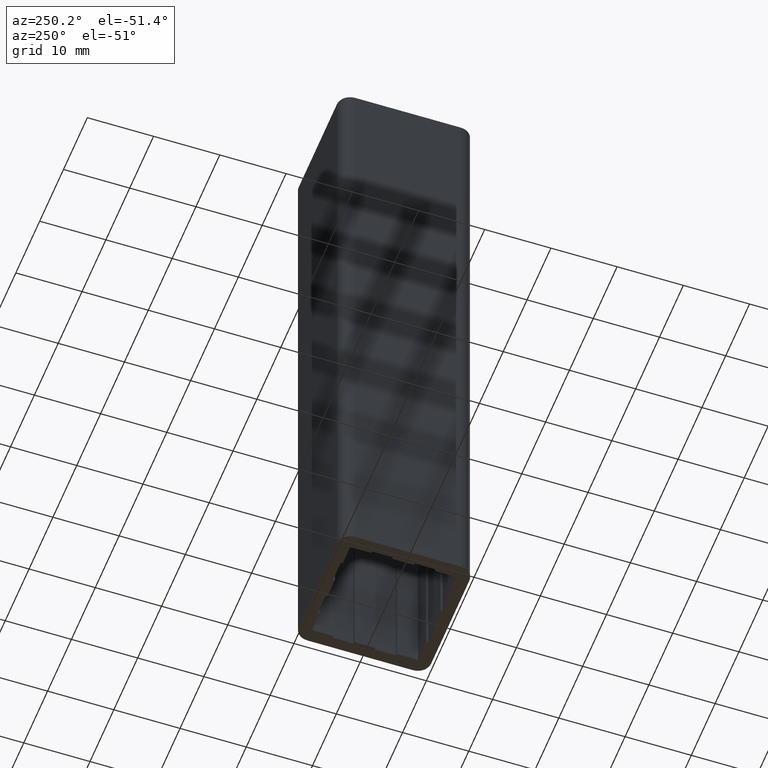
[diagram: clean part render]
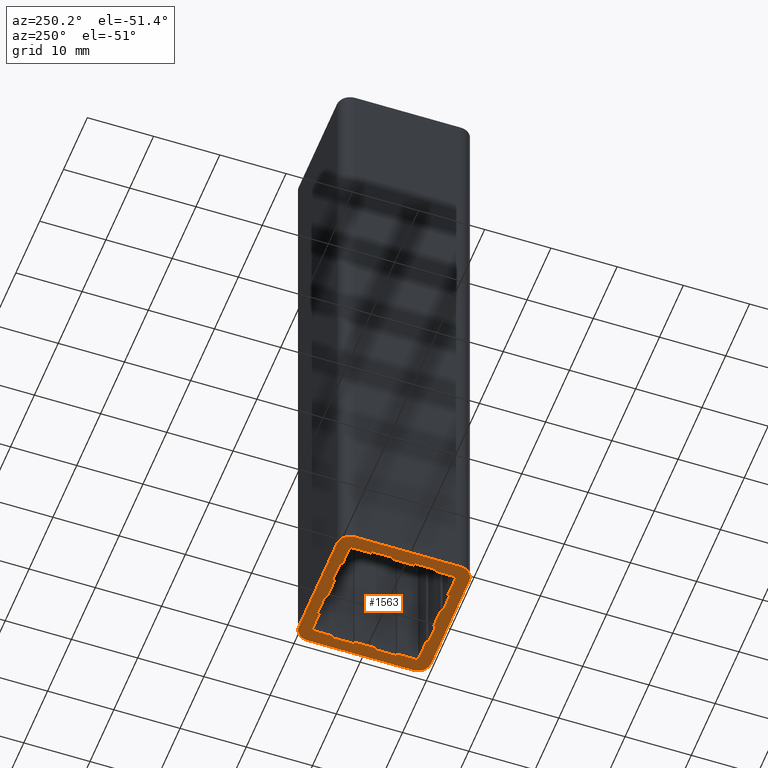
[diagram: same view with one face highlighted and labeled with its STEP entity id]
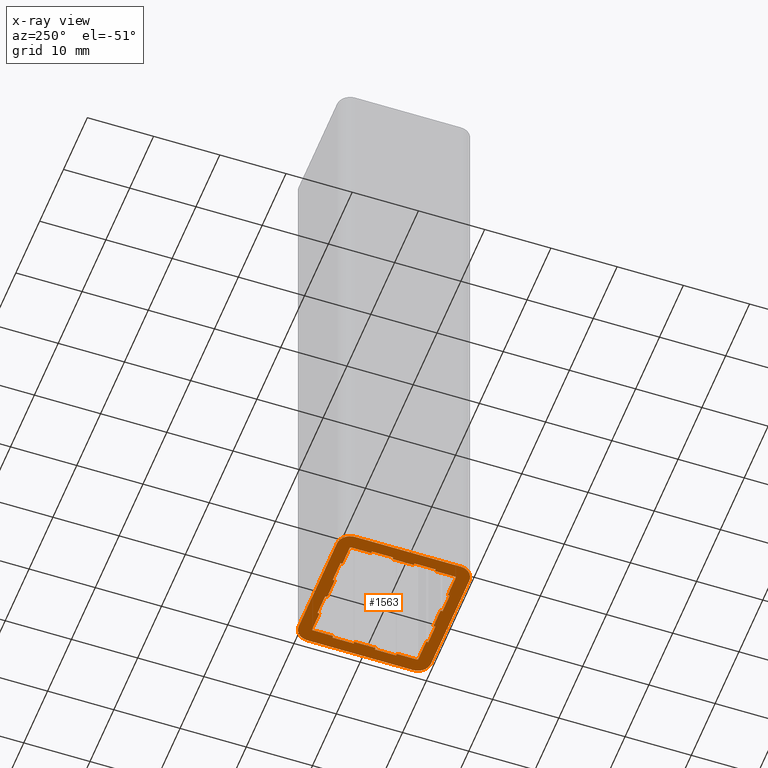
[diagram: x-ray of the same camera — body ghosted, the highlighted face saturated]
A machine part, auxiliary view. The second image highlights one B-rep face of the part: STEP entity #1563.
The next image is the same camera in x-ray: the body ghosted, the highlighted face saturated — about 0% of this face is hidden behind the body in this view.
In plain terms, the highlighted planar face has unit normal (0, 0, 1).
Its self-contained STEP definition (entity closure, byte-faithful):
#7=CARTESIAN_POINT('',(-20.0,-8.0,0.0));
#8=VERTEX_POINT('',#7);
#9=CARTESIAN_POINT('',(-18.0,-10.0,0.0));
#10=VERTEX_POINT('',#9);
#11=CARTESIAN_POINT('',(-18.0,-8.0,0.0));
#12=DIRECTION('',(0.0,0.0,1.0));
#13=DIRECTION('',(1.0,0.0,0.0));
#14=AXIS2_PLACEMENT_3D('',#11,#12,#13);
#15=CIRCLE('',#14,2.0);
#16=EDGE_CURVE('',#8,#10,#15,.T.);
#49=CARTESIAN_POINT('',(-2.0,-10.0,0.0));
#50=VERTEX_POINT('',#49);
#51=CARTESIAN_POINT('',(-18.0,-10.0,0.0));
#52=DIRECTION('',(1.0,0.0,0.0));
#53=VECTOR('',#52,16.000000000000011);
#54=LINE('',#51,#53);
#55=EDGE_CURVE('',#10,#50,#54,.T.);
#80=CARTESIAN_POINT('',(0.0,-8.0,0.0));
#81=VERTEX_POINT('',#80);
#82=CARTESIAN_POINT('',(-2.0,-8.0,0.0));
#83=DIRECTION('',(0.0,0.0,1.0));
#84=DIRECTION('',(1.0,0.0,0.0));
#85=AXIS2_PLACEMENT_3D('',#82,#83,#84);
#86=CIRCLE('',#85,2.0);
#87=EDGE_CURVE('',#50,#81,#86,.T.);
#113=CARTESIAN_POINT('',(0.0,8.0,0.0));
#114=VERTEX_POINT('',#113);
#115=CARTESIAN_POINT('',(0.0,-8.0,0.0));
#116=DIRECTION('',(0.0,1.0,0.0));
#117=VECTOR('',#116,16.0);
#118=LINE('',#115,#117);
#119=EDGE_CURVE('',#81,#114,#118,.T.);
#144=CARTESIAN_POINT('',(-2.0,10.0,0.0));
#145=VERTEX_POINT('',#144);
#146=CARTESIAN_POINT('',(-2.0,8.0,0.0));
#147=DIRECTION('',(0.0,0.0,1.0));
#148=DIRECTION('',(1.0,0.0,0.0));
#149=AXIS2_PLACEMENT_3D('',#146,#147,#148);
#150=CIRCLE('',#149,2.0);
#151=EDGE_CURVE('',#114,#145,#150,.T.);
#177=CARTESIAN_POINT('',(-18.0,10.0,0.0));
#178=VERTEX_POINT('',#177);
#179=CARTESIAN_POINT('',(-1.999999999999989,10.0,0.0));
#180=DIRECTION('',(-1.0,0.0,0.0));
#181=VECTOR('',#180,16.000000000000011);
#182=LINE('',#179,#181);
#183=EDGE_CURVE('',#145,#178,#182,.T.);
#208=CARTESIAN_POINT('',(-20.0,8.0,0.0));
#209=VERTEX_POINT('',#208);
#210=CARTESIAN_POINT('',(-18.0,8.0,0.0));
#211=DIRECTION('',(0.0,0.0,1.0));
#212=DIRECTION('',(1.0,0.0,0.0));
#213=AXIS2_PLACEMENT_3D('',#210,#211,#212);
#214=CIRCLE('',#213,2.0);
#215=EDGE_CURVE('',#178,#209,#214,.T.);
#241=CARTESIAN_POINT('',(-20.0,8.0,0.0));
#242=DIRECTION('',(0.0,-1.0,0.0));
#243=VECTOR('',#242,16.0);
#244=LINE('',#241,#243);
#245=EDGE_CURVE('',#209,#8,#244,.T.);
#263=CARTESIAN_POINT('',(-2.160000000000196,-8.0,0.0));
#264=VERTEX_POINT('',#263);
#265=CARTESIAN_POINT('',(-5.500000000000000,-8.0,0.0));
#266=VERTEX_POINT('',#265);
#267=CARTESIAN_POINT('',(-2.160000000000218,-8.0,0.0));
#268=DIRECTION('',(-1.0,0.0,0.0));
#269=VECTOR('',#268,3.339999999999782);
#270=LINE('',#267,#269);
#271=EDGE_CURVE('',#264,#266,#270,.T.);
#303=CARTESIAN_POINT('',(-5.500000000000000,-8.299999999999955,0.0));
#304=VERTEX_POINT('',#303);
#305=CARTESIAN_POINT('',(-5.500000000000000,-7.999999999999955,0.0));
#306=DIRECTION('',(0.0,-1.0,0.0));
#307=VECTOR('',#306,0.300000000000000);
#308=LINE('',#305,#307);
#309=EDGE_CURVE('',#266,#304,#308,.T.);
#334=CARTESIAN_POINT('',(-8.500000000000000,-8.299999999999955,0.0));
#335=VERTEX_POINT('',#334);
#336=CARTESIAN_POINT('',(-5.500000000000000,-8.299999999999955,0.0));
#337=DIRECTION('',(-1.0,0.0,0.0));
#338=VECTOR('',#337,3.0);
#339=LINE('',#336,#338);
#340=EDGE_CURVE('',#304,#335,#339,.T.);
#365=CARTESIAN_POINT('',(-8.500000000000000,-8.0,0.0));
#366=VERTEX_POINT('',#365);
#367=CARTESIAN_POINT('',(-8.500000000000000,-8.300000000000001,0.0));
#368=DIRECTION('',(0.0,1.0,0.0));
#369=VECTOR('',#368,0.300000000000001);
#370=LINE('',#367,#369);
#371=EDGE_CURVE('',#335,#366,#370,.T.);
#396=CARTESIAN_POINT('',(-11.500000000000000,-8.0,0.0));
#397=VERTEX_POINT('',#396);
#398=CARTESIAN_POINT('',(-8.500000000000011,-8.0,0.0));
#399=DIRECTION('',(-1.0,0.0,0.0));
#400=VECTOR('',#399,2.999999999999989);
#401=LINE('',#398,#400);
#402=EDGE_CURVE('',#366,#397,#401,.T.);
#427=CARTESIAN_POINT('',(-11.500000000000000,-8.299999999999955,0.0));
#428=VERTEX_POINT('',#427);
#429=CARTESIAN_POINT('',(-11.500000000000000,-7.999999999999955,0.0));
#430=DIRECTION('',(0.0,-1.0,0.0));
#431=VECTOR('',#430,0.300000000000000);
#432=LINE('',#429,#431);
#433=EDGE_CURVE('',#397,#428,#432,.T.);
#458=CARTESIAN_POINT('',(-14.500000000000000,-8.299999999999955,0.0));
#459=VERTEX_POINT('',#458);
#460=CARTESIAN_POINT('',(-11.500000000000000,-8.299999999999955,0.0));
#461=DIRECTION('',(-1.0,0.0,0.0));
#462=VECTOR('',#461,3.0);
#463=LINE('',#460,#462);
#464=EDGE_CURVE('',#428,#459,#463,.T.);
#489=CARTESIAN_POINT('',(-14.500000000000000,-8.0,0.0));
#490=VERTEX_POINT('',#489);
#491=CARTESIAN_POINT('',(-14.500000000000000,-8.300000000000001,0.0));
#492=DIRECTION('',(0.0,1.0,0.0));
#493=VECTOR('',#492,0.300000000000001);
#494=LINE('',#491,#493);
#495=EDGE_CURVE('',#459,#490,#494,.T.);
#520=CARTESIAN_POINT('',(-17.840000000000146,-8.000000000000227,0.0));
#521=VERTEX_POINT('',#520);
#522=CARTESIAN_POINT('',(-14.500000000000000,-8.0,0.0));
#523=DIRECTION('',(-1.0,0.0,0.0));
#524=VECTOR('',#523,3.340000000000146);
#525=LINE('',#522,#524);
#526=EDGE_CURVE('',#490,#521,#525,.T.);
#551=CARTESIAN_POINT('',(-18.000000000000341,-7.840000000000146,0.0));
#552=VERTEX_POINT('',#551);
#553=CARTESIAN_POINT('',(-17.840000000000146,-7.840000000000146,0.0));
#554=DIRECTION('',(0.0,0.0,-1.0));
#555=DIRECTION('',(1.0,0.0,0.0));
#556=AXIS2_PLACEMENT_3D('',#553,#554,#555);
#557=CIRCLE('',#556,0.160000000000000);
#558=EDGE_CURVE('',#521,#552,#557,.T.);
#584=CARTESIAN_POINT('',(-18.000000000000341,-4.799999999999955,0.0));
#585=VERTEX_POINT('',#584);
#586=CARTESIAN_POINT('',(-18.000000000000341,-7.840000000000055,0.0));
#587=DIRECTION('',(0.0,1.0,0.0));
#588=VECTOR('',#587,3.040000000000100);
#589=LINE('',#586,#588);
#590=EDGE_CURVE('',#552,#585,#589,.T.);
#615=CARTESIAN_POINT('',(-18.300000000000409,-4.799999999999955,0.0));
#616=VERTEX_POINT('',#615);
#617=CARTESIAN_POINT('',(-18.000000000000398,-4.799999999999955,0.0));
#618=DIRECTION('',(-1.0,0.0,0.0));
#619=VECTOR('',#618,0.300000000000011);
#620=LINE('',#617,#619);
#621=EDGE_CURVE('',#585,#616,#620,.T.);
#646=CARTESIAN_POINT('',(-18.300000000000296,-1.599999999999909,0.0));
#647=VERTEX_POINT('',#646);
#648=CARTESIAN_POINT('',(-18.300000000000409,-4.799999999999909,0.0));
#649=DIRECTION('',(0.0,1.0,0.0));
#650=VECTOR('',#649,3.200000000000000);
#651=LINE('',#648,#650);
#652=EDGE_CURVE('',#616,#647,#651,.T.);
#677=CARTESIAN_POINT('',(-18.000000000000341,-1.599999999999909,0.0));
#678=VERTEX_POINT('',#677);
#679=CARTESIAN_POINT('',(-18.300000000000352,-1.599999999999909,0.0));
#680=DIRECTION('',(1.0,0.0,0.0));
#681=VECTOR('',#680,0.300000000000011);
#682=LINE('',#679,#681);
#683=EDGE_CURVE('',#647,#678,#682,.T.);
#708=CARTESIAN_POINT('',(-18.000000000000341,1.599999999999909,0.0));
#709=VERTEX_POINT('',#708);
#710=CARTESIAN_POINT('',(-18.000000000000341,-1.600000000000000,0.0));
#711=DIRECTION('',(0.0,1.0,0.0));
#712=VECTOR('',#711,3.199999999999909);
#713=LINE('',#710,#712);
#714=EDGE_CURVE('',#678,#709,#713,.T.);
#739=CARTESIAN_POINT('',(-18.300000000000409,1.599999999999909,0.0));
#740=VERTEX_POINT('',#739);
#741=CARTESIAN_POINT('',(-18.000000000000398,1.599999999999909,0.0));
#742=DIRECTION('',(-1.0,0.0,0.0));
#743=VECTOR('',#742,0.300000000000011);
#744=LINE('',#741,#743);
#745=EDGE_CURVE('',#709,#740,#744,.T.);
#770=CARTESIAN_POINT('',(-18.300000000000296,4.799999999999955,0.0));
#771=VERTEX_POINT('',#770);
#772=CARTESIAN_POINT('',(-18.300000000000409,1.599999999999954,0.0));
#773=DIRECTION('',(0.0,1.0,0.0));
#774=VECTOR('',#773,3.200000000000000);
#775=LINE('',#772,#774);
#776=EDGE_CURVE('',#740,#771,#775,.T.);
#801=CARTESIAN_POINT('',(-18.000000000000341,4.799999999999955,0.0));
#802=VERTEX_POINT('',#801);
#803=CARTESIAN_POINT('',(-18.300000000000352,4.799999999999955,0.0));
#804=DIRECTION('',(1.0,0.0,0.0));
#805=VECTOR('',#804,0.300000000000011);
#806=LINE('',#803,#805);
#807=EDGE_CURVE('',#771,#802,#806,.T.);
#832=CARTESIAN_POINT('',(-18.000000000000455,7.840000000000146,0.0));
#833=VERTEX_POINT('',#832);
#834=CARTESIAN_POINT('',(-18.000000000000341,4.800000000000045,0.0));
#835=DIRECTION('',(0.0,1.0,0.0));
#836=VECTOR('',#835,3.040000000000100);
#837=LINE('',#834,#836);
#838=EDGE_CURVE('',#802,#833,#837,.T.);
#863=CARTESIAN_POINT('',(-17.840000000000600,8.0,0.0));
#864=VERTEX_POINT('',#863);
#865=CARTESIAN_POINT('',(-17.840000000000487,7.840000000000146,0.0));
#866=DIRECTION('',(0.0,0.0,-1.0));
#867=DIRECTION('',(1.0,0.0,0.0));
#868=AXIS2_PLACEMENT_3D('',#865,#866,#867);
#869=CIRCLE('',#868,0.160000000000000);
#870=EDGE_CURVE('',#833,#864,#869,.T.);
#896=CARTESIAN_POINT('',(-14.800000000000068,8.0,0.0));
#897=VERTEX_POINT('',#896);
#898=CARTESIAN_POINT('',(-17.840000000000565,8.0,0.0));
#899=DIRECTION('',(1.0,0.0,0.0));
#900=VECTOR('',#899,3.040000000000497);
#901=LINE('',#898,#900);
#902=EDGE_CURVE('',#864,#897,#901,.T.);
#927=CARTESIAN_POINT('',(-14.800000000000068,8.299999999999955,0.0));
#928=VERTEX_POINT('',#927);
#929=CARTESIAN_POINT('',(-14.800000000000068,7.999999999999955,0.0));
#930=DIRECTION('',(0.0,1.0,0.0));
#931=VECTOR('',#930,0.300000000000000);
#932=LINE('',#929,#931);
#933=EDGE_CURVE('',#897,#928,#932,.T.);
#958=CARTESIAN_POINT('',(-11.600000000000250,8.299999999999955,0.0));
#959=VERTEX_POINT('',#958);
#960=CARTESIAN_POINT('',(-14.800000000000068,8.299999999999955,0.0));
#961=DIRECTION('',(1.0,0.0,0.0));
#962=VECTOR('',#961,3.199999999999818);
#963=LINE('',#960,#962);
#964=EDGE_CURVE('',#928,#959,#963,.T.);
#989=CARTESIAN_POINT('',(-11.600000000000136,8.0,0.0));
#990=VERTEX_POINT('',#989);
#991=CARTESIAN_POINT('',(-11.600000000000250,8.300000000000001,0.0));
#992=DIRECTION('',(0.0,-1.0,0.0));
#993=VECTOR('',#992,0.300000000000001);
#994=LINE('',#991,#993);
#995=EDGE_CURVE('',#959,#990,#994,.T.);
#1020=CARTESIAN_POINT('',(-8.399999999999977,8.0,0.0));
#1021=VERTEX_POINT('',#1020);
#1022=CARTESIAN_POINT('',(-11.600000000000170,8.0,0.0));
#1023=DIRECTION('',(1.0,0.0,0.0));
#1024=VECTOR('',#1023,3.200000000000193);
#1025=LINE('',#1022,#1024);
#1026=EDGE_CURVE('',#990,#1021,#1025,.T.);
#1051=CARTESIAN_POINT('',(-8.399999999999977,8.299999999999955,0.0));
#1052=VERTEX_POINT('',#1051);
#1053=CARTESIAN_POINT('',(-8.399999999999977,7.999999999999955,0.0));
#1054=DIRECTION('',(0.0,1.0,0.0));
#1055=VECTOR('',#1054,0.300000000000000);
#1056=LINE('',#1053,#1055);
#1057=EDGE_CURVE('',#1021,#1052,#1056,.T.);
#1082=CARTESIAN_POINT('',(-5.200000000000046,8.299999999999955,0.0));
#1083=VERTEX_POINT('',#1082);
#1084=CARTESIAN_POINT('',(-8.400000000000034,8.299999999999955,0.0));
#1085=DIRECTION('',(1.0,0.0,0.0));
#1086=VECTOR('',#1085,3.199999999999989);
#1087=LINE('',#1084,#1086);
#1088=EDGE_CURVE('',#1052,#1083,#1087,.T.);
#1113=CARTESIAN_POINT('',(-5.199999999999932,8.0,0.0));
#1114=VERTEX_POINT('',#1113);
#1115=CARTESIAN_POINT('',(-5.200000000000046,8.300000000000001,0.0));
#1116=DIRECTION('',(0.0,-1.0,0.0));
#1117=VECTOR('',#1116,0.300000000000001);
#1118=LINE('',#1115,#1117);
#1119=EDGE_CURVE('',#1083,#1114,#1118,.T.);
#1144=CARTESIAN_POINT('',(-2.160000000000196,8.000000000000227,0.0));
#1145=VERTEX_POINT('',#1144);
#1146=CARTESIAN_POINT('',(-5.199999999999978,8.0,0.0));
#1147=DIRECTION('',(1.0,0.0,0.0));
#1148=VECTOR('',#1147,3.039999999999782);
#1149=LINE('',#1146,#1148);
#1150=EDGE_CURVE('',#1114,#1145,#1149,.T.);
#1175=CARTESIAN_POINT('',(-2.000000000000341,7.840000000000146,0.0));
#1176=VERTEX_POINT('',#1175);
#1177=CARTESIAN_POINT('',(-2.160000000000196,7.840000000000146,0.0));
#1178=DIRECTION('',(0.0,0.0,-1.0));
#1179=DIRECTION('',(1.0,0.0,0.0));
#1180=AXIS2_PLACEMENT_3D('',#1177,#1178,#1179);
#1181=CIRCLE('',#1180,0.160000000000000);
#1182=EDGE_CURVE('',#1145,#1176,#1181,.T.);
#1208=CARTESIAN_POINT('',(-2.000000000000455,4.799999999999955,0.0));
#1209=VERTEX_POINT('',#1208);
#1210=CARTESIAN_POINT('',(-2.000000000000341,7.840000000000055,0.0));
#1211=DIRECTION('',(0.0,-1.0,0.0));
#1212=VECTOR('',#1211,3.040000000000100);
#1213=LINE('',#1210,#1212);
#1214=EDGE_CURVE('',#1176,#1209,#1213,.T.);
#1239=CARTESIAN_POINT('',(-1.700000000000046,4.799999999999955,0.0));
#1240=VERTEX_POINT('',#1239);
#1241=CARTESIAN_POINT('',(-2.000000000000421,4.799999999999955,0.0));
#1242=DIRECTION('',(1.0,0.0,0.0));
#1243=VECTOR('',#1242,0.300000000000375);
#1244=LINE('',#1241,#1243);
#1245=EDGE_CURVE('',#1209,#1240,#1244,.T.);
#1270=CARTESIAN_POINT('',(-1.699999999999932,1.599999999999909,0.0));
#1271=VERTEX_POINT('',#1270);
#1272=CARTESIAN_POINT('',(-1.700000000000046,4.799999999999909,0.0));
#1273=DIRECTION('',(0.0,-1.0,0.0));
#1274=VECTOR('',#1273,3.200000000000000);
#1275=LINE('',#1272,#1274);
#1276=EDGE_CURVE('',#1240,#1271,#1275,.T.);
#1301=CARTESIAN_POINT('',(-2.000000000000341,1.599999999999909,0.0));
#1302=VERTEX_POINT('',#1301);
#1303=CARTESIAN_POINT('',(-1.699999999999966,1.599999999999909,0.0));
#1304=DIRECTION('',(-1.0,0.0,0.0));
#1305=VECTOR('',#1304,0.300000000000375);
#1306=LINE('',#1303,#1305);
#1307=EDGE_CURVE('',#1271,#1302,#1306,.T.);
#1332=CARTESIAN_POINT('',(-2.000000000000455,-1.599999999999909,0.0));
#1333=VERTEX_POINT('',#1332);
#1334=CARTESIAN_POINT('',(-2.000000000000341,1.600000000000000,0.0));
#1335=DIRECTION('',(0.0,-1.0,0.0));
#1336=VECTOR('',#1335,3.199999999999909);
#1337=LINE('',#1334,#1336);
#1338=EDGE_CURVE('',#1302,#1333,#1337,.T.);
#1363=CARTESIAN_POINT('',(-1.700000000000046,-1.599999999999909,0.0));
#1364=VERTEX_POINT('',#1363);
#1365=CARTESIAN_POINT('',(-2.000000000000421,-1.599999999999909,0.0));
#1366=DIRECTION('',(1.0,0.0,0.0));
#1367=VECTOR('',#1366,0.300000000000375);
#1368=LINE('',#1365,#1367);
#1369=EDGE_CURVE('',#1333,#1364,#1368,.T.);
#1394=CARTESIAN_POINT('',(-1.699999999999932,-4.799999999999955,0.0));
#1395=VERTEX_POINT('',#1394);
#1396=CARTESIAN_POINT('',(-1.700000000000046,-1.599999999999954,0.0));
#1397=DIRECTION('',(0.0,-1.0,0.0));
#1398=VECTOR('',#1397,3.200000000000000);
#1399=LINE('',#1396,#1398);
#1400=EDGE_CURVE('',#1364,#1395,#1399,.T.);
#1425=CARTESIAN_POINT('',(-2.000000000000341,-4.799999999999955,0.0));
#1426=VERTEX_POINT('',#1425);
#1427=CARTESIAN_POINT('',(-1.699999999999966,-4.799999999999955,0.0));
#1428=DIRECTION('',(-1.0,0.0,0.0));
#1429=VECTOR('',#1428,0.300000000000375);
#1430=LINE('',#1427,#1429);
#1431=EDGE_CURVE('',#1395,#1426,#1430,.T.);
#1456=CARTESIAN_POINT('',(-2.000000000000227,-7.840000000000146,0.0));
#1457=VERTEX_POINT('',#1456);
#1458=CARTESIAN_POINT('',(-2.000000000000341,-4.800000000000045,0.0));
#1459=DIRECTION('',(0.0,-1.0,0.0));
#1460=VECTOR('',#1459,3.040000000000100);
#1461=LINE('',#1458,#1460);
#1462=EDGE_CURVE('',#1426,#1457,#1461,.T.);
#1487=CARTESIAN_POINT('',(-2.160000000000196,-7.840000000000146,0.0));
#1488=DIRECTION('',(0.0,0.0,-1.0));
#1489=DIRECTION('',(1.0,0.0,0.0));
#1490=AXIS2_PLACEMENT_3D('',#1487,#1488,#1489);
#1491=CIRCLE('',#1490,0.160000000000000);
#1492=EDGE_CURVE('',#1457,#264,#1491,.T.);
#1506=CARTESIAN_POINT('',(-22.000012002898075,-12.000012002849189,0.0));
#1507=DIRECTION('',(0.0,0.0,1.0));
#1508=DIRECTION('',(1.0,0.0,0.0));
#1509=AXIS2_PLACEMENT_3D('',#1506,#1507,#1508);
#1510=PLANE('',#1509);
#1511=ORIENTED_EDGE('',*,*,#245,.F.);
#1512=ORIENTED_EDGE('',*,*,#215,.F.);
#1513=ORIENTED_EDGE('',*,*,#183,.F.);
#1514=ORIENTED_EDGE('',*,*,#151,.F.);
#1515=ORIENTED_EDGE('',*,*,#119,.F.);
#1516=ORIENTED_EDGE('',*,*,#87,.F.);
#1517=ORIENTED_EDGE('',*,*,#55,.F.);
#1518=ORIENTED_EDGE('',*,*,#16,.F.);
#1519=EDGE_LOOP('',(#1511,#1512,#1513,#1514,#1515,#1516,#1517,#1518));
#1520=FACE_OUTER_BOUND('',#1519,.T.);
#1521=ORIENTED_EDGE('',*,*,#1492,.F.);
#1522=ORIENTED_EDGE('',*,*,#1462,.F.);
#1523=ORIENTED_EDGE('',*,*,#1431,.F.);
#1524=ORIENTED_EDGE('',*,*,#1400,.F.);
#1525=ORIENTED_EDGE('',*,*,#1369,.F.);
#1526=ORIENTED_EDGE('',*,*,#1338,.F.);
#1527=ORIENTED_EDGE('',*,*,#1307,.F.);
#1528=ORIENTED_EDGE('',*,*,#1276,.F.);
#1529=ORIENTED_EDGE('',*,*,#1245,.F.);
#1530=ORIENTED_EDGE('',*,*,#1214,.F.);
#1531=ORIENTED_EDGE('',*,*,#1182,.F.);
#1532=ORIENTED_EDGE('',*,*,#1150,.F.);
#1533=ORIENTED_EDGE('',*,*,#1119,.F.);
#1534=ORIENTED_EDGE('',*,*,#1088,.F.);
#1535=ORIENTED_EDGE('',*,*,#1057,.F.);
#1536=ORIENTED_EDGE('',*,*,#1026,.F.);
#1537=ORIENTED_EDGE('',*,*,#995,.F.);
#1538=ORIENTED_EDGE('',*,*,#964,.F.);
#1539=ORIENTED_EDGE('',*,*,#933,.F.);
#1540=ORIENTED_EDGE('',*,*,#902,.F.);
#1541=ORIENTED_EDGE('',*,*,#870,.F.);
#1542=ORIENTED_EDGE('',*,*,#838,.F.);
#1543=ORIENTED_EDGE('',*,*,#807,.F.);
#1544=ORIENTED_EDGE('',*,*,#776,.F.);
#1545=ORIENTED_EDGE('',*,*,#745,.F.);
#1546=ORIENTED_EDGE('',*,*,#714,.F.);
#1547=ORIENTED_EDGE('',*,*,#683,.F.);
#1548=ORIENTED_EDGE('',*,*,#652,.F.);
#1549=ORIENTED_EDGE('',*,*,#621,.F.);
#1550=ORIENTED_EDGE('',*,*,#590,.F.);
#1551=ORIENTED_EDGE('',*,*,#558,.F.);
#1552=ORIENTED_EDGE('',*,*,#526,.F.);
#1553=ORIENTED_EDGE('',*,*,#495,.F.);
#1554=ORIENTED_EDGE('',*,*,#464,.F.);
#1555=ORIENTED_EDGE('',*,*,#433,.F.);
#1556=ORIENTED_EDGE('',*,*,#402,.F.);
#1557=ORIENTED_EDGE('',*,*,#371,.F.);
#1558=ORIENTED_EDGE('',*,*,#340,.F.);
#1559=ORIENTED_EDGE('',*,*,#309,.F.);
#1560=ORIENTED_EDGE('',*,*,#271,.F.);
#1561=EDGE_LOOP('',(#1521,#1522,#1523,#1524,#1525,#1526,#1527,#1528,#1529,#1530,#1531,#1532,#1533,#1534,#1535,#1536,#1537,#1538,#1539,#1540,#1541,#1542,#1543,#1544,#1545,#1546,#1547,#1548,#1549,#1550,#1551,#1552,#1553,#1554,#1555,#1556,#1557,#1558,#1559,#1560));
#1562=FACE_BOUND('',#1561,.T.);
#1563=ADVANCED_FACE('',(#1520,#1562),#1510,.F.);